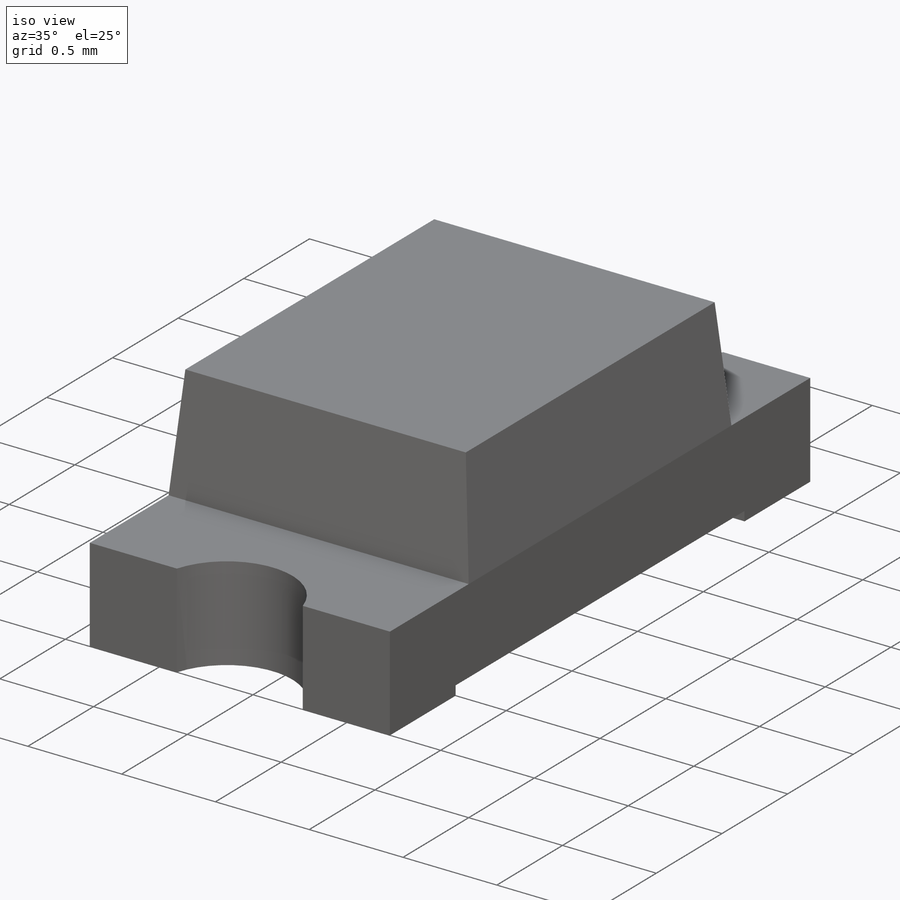
[diagram: iso view]
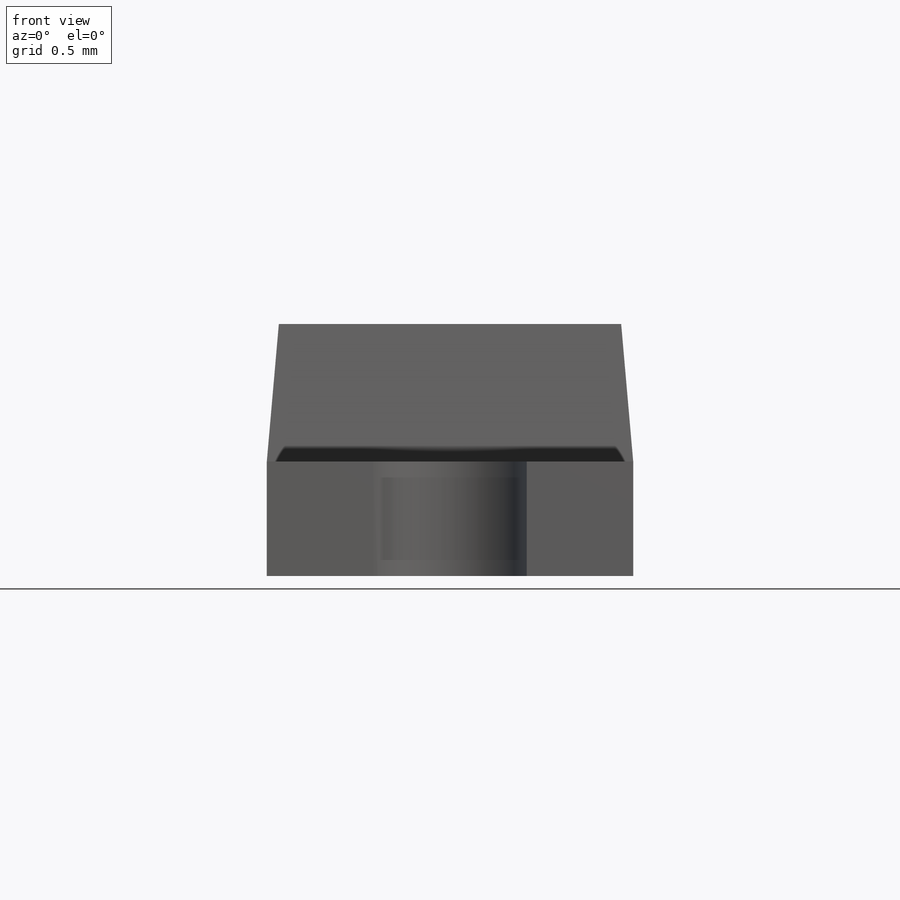
[diagram: front view]
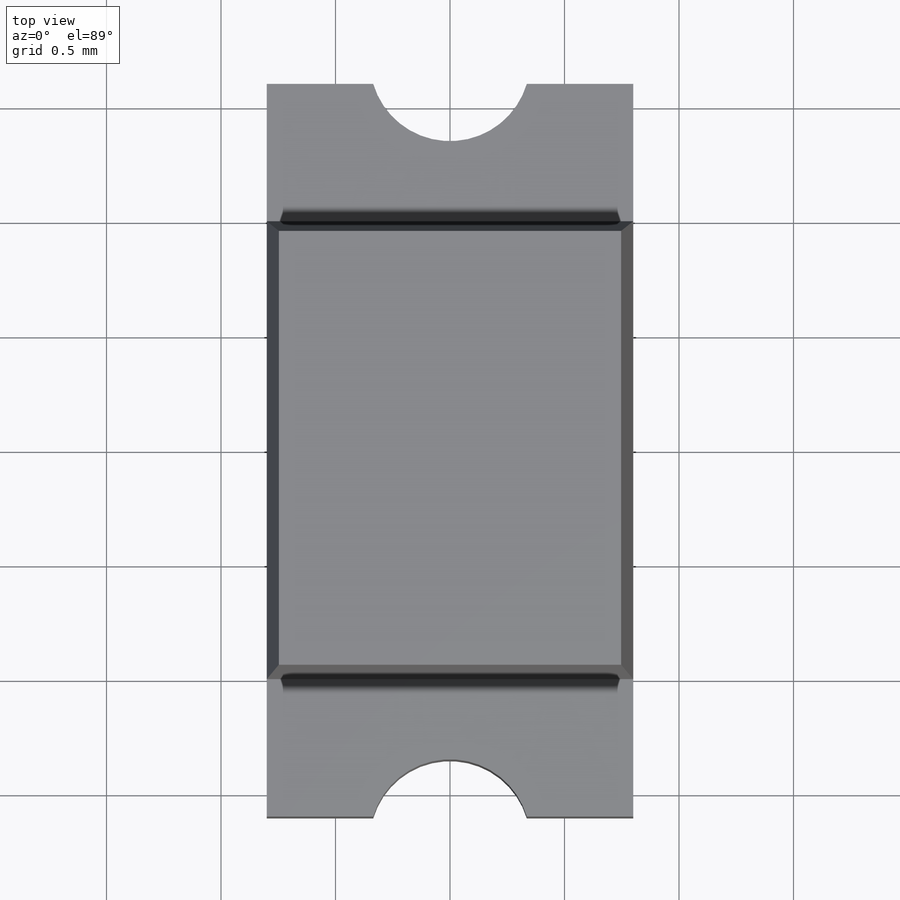
[diagram: top view]
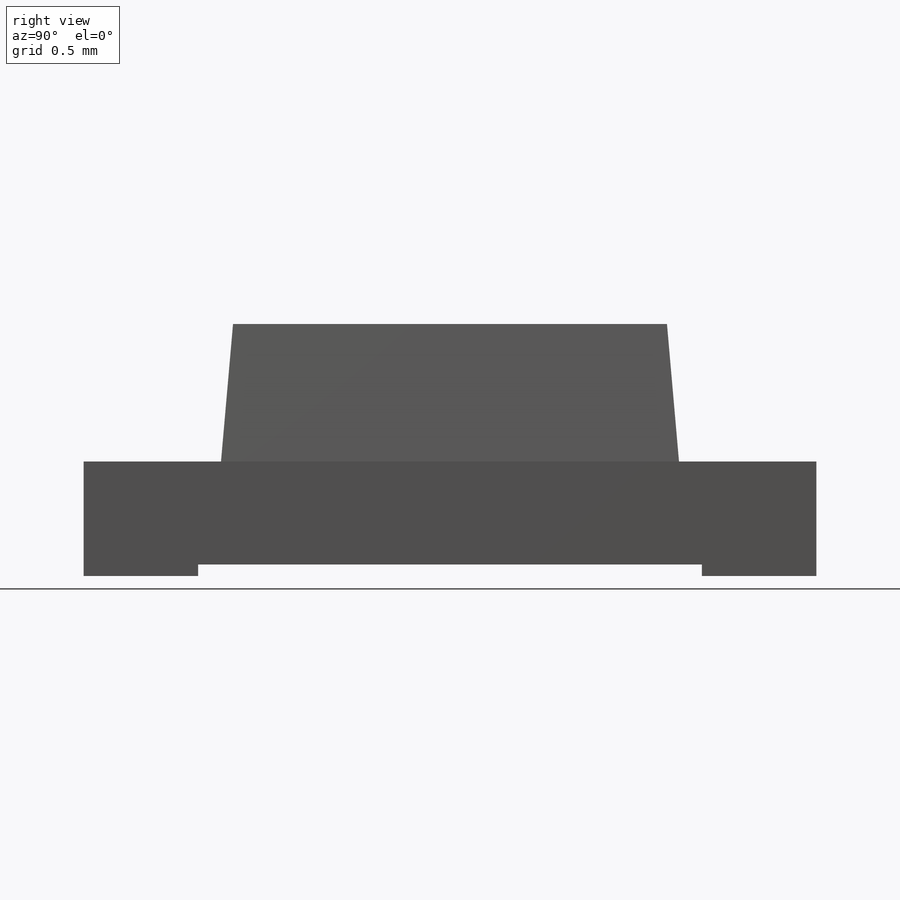
[diagram: right view]
SOLIDWORKS PART (.sldprt)
format: sldprt  version: not decoded by parser v0  size: 267,264 bytes
history: native  units: mm
features: sketch x6, extrude x3, cut_extrude x2, material x1 (+12 scaffold rows collapsed)
feature tree (24):
  scaffold x12  (default folders/planes/origin — collapsed)
  material  "Material <not specified>"
  sketch  "Sketch1"  dims[D1=3.2mm D2=0.5mm D3=0.05mm D4=2.2mm D5=1.1mm]
  extrude  "Extrude1"  Depth=0.8mm
  sketch  "Sketch2"  dims[D1=0.4mm]
  cut_extrude  "Cut-Extrude1"  [1 undecoded]
  sketch  "Sketch3"  dims[D1=0.45mm D2=0.45mm D3=0.225mm D4=0.225mm D5=0.15mm D6=0.15mm D7=0.15mm D8=0.3mm D9=1.0mm D10=1.0mm D11=0.18mm D12=0.18mm]
  cut_extrude  "Cut-Extrude2"  Depth=0.005mm
  sketch  "Sketch4"  dims[D1=0.39mm D2=0.39mm D3=0.195mm D4=0.195mm]
  extrude  "Extrude2"  Depth=0.25mm
  sketch  "Sketch5"  dims[D1=2.0mm]
  extrude  "Extrude3"  Depth=0.6mm
  sketch  "Component_Outline"
decode coverage: 9 of 11 modeling features carry decoded parameters
note: 1 parameter value undecoded
note: suppression state not decoded; provenance and decode notes live in map.json
